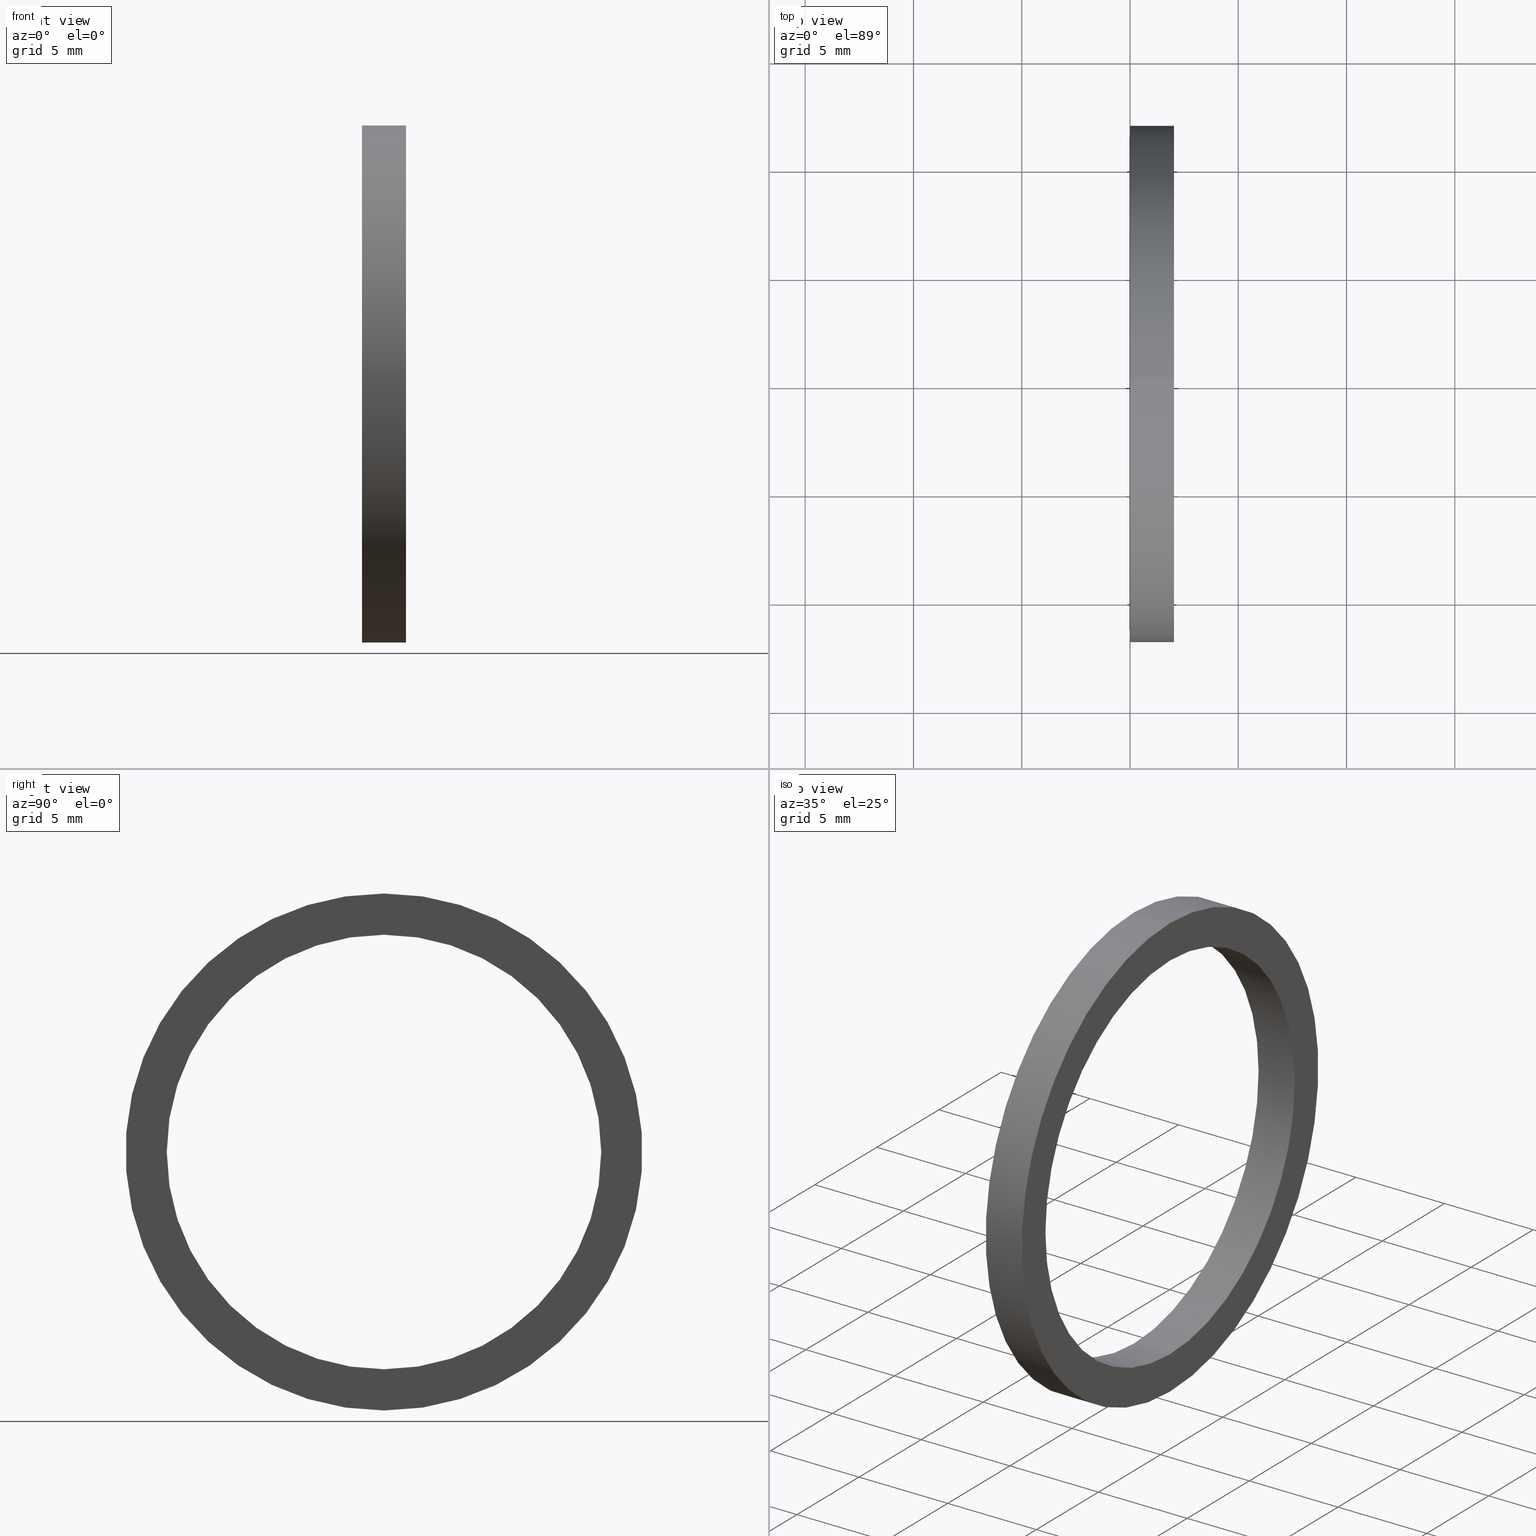
[diagram: canonical four-view strip — front | top / right | iso, engineering-drawing reading convention]
A machine part, canonical four-view strip (front | top / right | iso — engineering-drawing reading convention). The complete STEP part file that produces these views, byte-faithful:
ISO-10303-21;
HEADER;
FILE_DESCRIPTION (( 'STEP AP203' ),
    '1' );
FILE_NAME ('SM-20-VT.STEP',
    '2008-06-25T04:49:33',
    ( 'BSI05' ),
    ( 'BAYSTATE' ),
    'SwSTEP 2.0',
    'SolidWorks 2007',
    '' );
FILE_SCHEMA (( 'CONFIG_CONTROL_DESIGN' ));
ENDSEC;

DATA;
#1 = ORIENTED_EDGE ( 'NONE', *, *, #2, .T. ) ;
#2 = EDGE_CURVE ( 'NONE', #3, #11, #25, .T. ) ;
#3 = VERTEX_POINT ( 'NONE', #20 ) ;
#4 = EDGE_CURVE ( 'NONE', #252, #5, #19, .T. ) ;
#5 = VERTEX_POINT ( 'NONE', #49 ) ;
#6 = ORIENTED_EDGE ( 'NONE', *, *, #7, .T. ) ;
#7 = EDGE_CURVE ( 'NONE', #5, #8, #48, .T. ) ;
#8 = VERTEX_POINT ( 'NONE', #53 ) ;
#9 = ORIENTED_EDGE ( 'NONE', *, *, #10, .F. ) ;
#10 = EDGE_CURVE ( 'NONE', #44, #8, #56, .T. ) ;
#11 = VERTEX_POINT ( 'NONE', #63 ) ;
#12 = VERTEX_POINT ( 'NONE', #66 ) ;
#13 = EDGE_CURVE ( 'NONE', #8, #5, #64, .T. ) ;
#14 = ORIENTED_EDGE ( 'NONE', *, *, #239, .T. ) ;
#15 = ADVANCED_FACE ( 'NONE', ( #89 ), #90, .T. ) ;
#16 = ORIENTED_EDGE ( 'NONE', *, *, #234, .F. ) ;
#17 = ORIENTED_EDGE ( 'NONE', *, *, #29, .T. ) ;
#18 = ORIENTED_EDGE ( 'NONE', *, *, #7, .F. ) ;
#19 = LINE ( 'NONE', #47, #55 ) ;
#20 = CARTESIAN_POINT ( 'NONE',  ( 0.07999999999999996000, 0.0000000000000000000, 0.4699999999999999700 ) ) ;
#21 = DIRECTION ( 'NONE',  ( 0.0000000000000000000, 0.0000000000000000000, 1.000000000000000000 ) ) ;
#22 = DIRECTION ( 'NONE',  ( -1.000000000000000000, 0.0000000000000000000, 0.0000000000000000000 ) ) ;
#23 = CARTESIAN_POINT ( 'NONE',  ( 0.07999999999999996000, 0.0000000000000000000, 0.0000000000000000000 ) ) ;
#24 = AXIS2_PLACEMENT_3D ( 'NONE', #23, #22, #21 ) ;
#25 = CIRCLE ( 'NONE', #24, 0.4699999999999999700 ) ;
#26 = ADVANCED_FACE ( 'NONE', ( #94 ), #93, .T. ) ;
#27 = EDGE_LOOP ( 'NONE', ( #1, #233, #235, #238 ) ) ;
#28 = EDGE_LOOP ( 'NONE', ( #16, #17, #14, #229 ) ) ;
#29 = EDGE_CURVE ( 'NONE', #11, #3, #76, .T. ) ;
#30 = PERSON_AND_ORGANIZATION_ROLE ( 'creator' ) ;
#31 = PERSON_AND_ORGANIZATION ( #174, #173 ) ;
#32 = EDGE_CURVE ( 'NONE', #44, #252, #77, .T. ) ;
#33 = ORIENTED_EDGE ( 'NONE', *, *, #251, .T. ) ;
#34 = EDGE_LOOP ( 'NONE', ( #35, #36 ) ) ;
#35 = ORIENTED_EDGE ( 'NONE', *, *, #2, .F. ) ;
#36 = ORIENTED_EDGE ( 'NONE', *, *, #29, .F. ) ;
#37 = ADVANCED_FACE ( 'NONE', ( #83 ), #82, .F. ) ;
#38 = EDGE_LOOP ( 'NONE', ( #39, #40, #41, #42 ) ) ;
#39 = ORIENTED_EDGE ( 'NONE', *, *, #4, .F. ) ;
#40 = ORIENTED_EDGE ( 'NONE', *, *, #32, .F. ) ;
#41 = ORIENTED_EDGE ( 'NONE', *, *, #10, .T. ) ;
#42 = ORIENTED_EDGE ( 'NONE', *, *, #13, .T. ) ;
#43 = CLOSED_SHELL ( 'NONE', ( #248, #26, #240, #15, #230, #37 ) ) ;
#44 = VERTEX_POINT ( 'NONE', #101 ) ;
#45 = ORIENTED_EDGE ( 'NONE', *, *, #4, .T. ) ;
#46 = DIRECTION ( 'NONE',  ( -1.000000000000000000, 0.0000000000000000000, 0.0000000000000000000 ) ) ;
#47 = CARTESIAN_POINT ( 'NONE',  ( -1.721125226614714300, 4.837354856632045600E-017, -0.3950000000000000200 ) ) ;
#48 = CIRCLE ( 'NONE', #52, 0.3950000000000000200 ) ;
#49 = CARTESIAN_POINT ( 'NONE',  ( 0.0000000000000000000, 4.837354856632045600E-017, -0.3950000000000000200 ) ) ;
#50 = DIRECTION ( 'NONE',  ( -1.000000000000000000, 0.0000000000000000000, 0.0000000000000000000 ) ) ;
#51 = CARTESIAN_POINT ( 'NONE',  ( 0.0000000000000000000, 0.0000000000000000000, 0.0000000000000000000 ) ) ;
#52 = AXIS2_PLACEMENT_3D ( 'NONE', #51, #50, #54 ) ;
#53 = CARTESIAN_POINT ( 'NONE',  ( 0.0000000000000000000, 0.0000000000000000000, 0.3950000000000000200 ) ) ;
#54 = DIRECTION ( 'NONE',  ( 0.0000000000000000000, 0.0000000000000000000, 1.000000000000000000 ) ) ;
#55 = VECTOR ( 'NONE', #46, 39.37007874015748100 ) ;
#56 = LINE ( 'NONE', #62, #61 ) ;
#57 = AXIS2_PLACEMENT_3D ( 'NONE', #59, #58, #70 ) ;
#58 = DIRECTION ( 'NONE',  ( -1.000000000000000000, 0.0000000000000000000, 0.0000000000000000000 ) ) ;
#59 = CARTESIAN_POINT ( 'NONE',  ( 0.0000000000000000000, 0.0000000000000000000, 0.0000000000000000000 ) ) ;
#60 = DIRECTION ( 'NONE',  ( -1.000000000000000000, 0.0000000000000000000, 0.0000000000000000000 ) ) ;
#61 = VECTOR ( 'NONE', #60, 39.37007874015748100 ) ;
#62 = CARTESIAN_POINT ( 'NONE',  ( -1.721125226614714300, 0.0000000000000000000, 0.3950000000000000200 ) ) ;
#63 = CARTESIAN_POINT ( 'NONE',  ( 0.07999999999999996000, 5.755839955992559700E-017, -0.4699999999999999700 ) ) ;
#64 = CIRCLE ( 'NONE', #57, 0.3950000000000000200 ) ;
#65 = AXIS2_PLACEMENT_3D ( 'NONE', #69, #67, #71 ) ;
#66 = CARTESIAN_POINT ( 'NONE',  ( 0.0000000000000000000, 5.755839955992559700E-017, -0.4699999999999999700 ) ) ;
#67 = DIRECTION ( 'NONE',  ( -1.000000000000000000, 0.0000000000000000000, 0.0000000000000000000 ) ) ;
#68 = CC_DESIGN_PERSON_AND_ORGANIZATION_ASSIGNMENT ( #31, #30, ( #166 ) ) ;
#69 = CARTESIAN_POINT ( 'NONE',  ( -1.721125226614714300, 0.0000000000000000000, 0.0000000000000000000 ) ) ;
#70 = DIRECTION ( 'NONE',  ( 0.0000000000000000000, 0.0000000000000000000, 1.000000000000000000 ) ) ;
#71 = DIRECTION ( 'NONE',  ( 0.0000000000000000000, 0.0000000000000000000, 1.000000000000000000 ) ) ;
#72 = DIRECTION ( 'NONE',  ( -1.000000000000000000, 0.0000000000000000000, 0.0000000000000000000 ) ) ;
#73 = DIRECTION ( 'NONE',  ( 0.0000000000000000000, 0.0000000000000000000, 1.000000000000000000 ) ) ;
#74 = DIRECTION ( 'NONE',  ( -1.000000000000000000, 0.0000000000000000000, 0.0000000000000000000 ) ) ;
#75 = AXIS2_PLACEMENT_3D ( 'NONE', #92, #74, #73 ) ;
#76 = CIRCLE ( 'NONE', #75, 0.4699999999999999700 ) ;
#77 = CIRCLE ( 'NONE', #87, 0.3950000000000000200 ) ;
#78 = DIRECTION ( 'NONE',  ( 0.0000000000000000000, 0.0000000000000000000, 1.000000000000000000 ) ) ;
#79 = AXIS2_PLACEMENT_3D ( 'NONE', #91, #72, #78 ) ;
#80 = LOCAL_TIME ( 10, 19, 33.00000000000000000, #81 ) ;
#81 = COORDINATED_UNIVERSAL_TIME_OFFSET ( 5, 30, .AHEAD. ) ;
#82 = CYLINDRICAL_SURFACE ( 'NONE', #65, 0.3950000000000000200 ) ;
#83 = FACE_OUTER_BOUND ( 'NONE', #38, .T. ) ;
#84 = DIRECTION ( 'NONE',  ( 0.0000000000000000000, 0.0000000000000000000, 1.000000000000000000 ) ) ;
#85 = DIRECTION ( 'NONE',  ( -1.000000000000000000, 0.0000000000000000000, 0.0000000000000000000 ) ) ;
#86 = CARTESIAN_POINT ( 'NONE',  ( 0.07999999999999996000, 0.0000000000000000000, 0.0000000000000000000 ) ) ;
#87 = AXIS2_PLACEMENT_3D ( 'NONE', #86, #85, #84 ) ;
#88 = AXIS2_PLACEMENT_3D ( 'NONE', #97, #96, #95 ) ;
#89 = FACE_OUTER_BOUND ( 'NONE', #28, .T. ) ;
#90 = CYLINDRICAL_SURFACE ( 'NONE', #88, 0.4699999999999999700 ) ;
#91 = CARTESIAN_POINT ( 'NONE',  ( -1.721125226614714300, 0.0000000000000000000, 0.0000000000000000000 ) ) ;
#92 = CARTESIAN_POINT ( 'NONE',  ( 0.07999999999999996000, 0.0000000000000000000, 0.0000000000000000000 ) ) ;
#93 = CYLINDRICAL_SURFACE ( 'NONE', #79, 0.4699999999999999700 ) ;
#94 = FACE_OUTER_BOUND ( 'NONE', #27, .T. ) ;
#95 = DIRECTION ( 'NONE',  ( 0.0000000000000000000, 0.0000000000000000000, 1.000000000000000000 ) ) ;
#96 = DIRECTION ( 'NONE',  ( -1.000000000000000000, 0.0000000000000000000, 0.0000000000000000000 ) ) ;
#97 = CARTESIAN_POINT ( 'NONE',  ( -1.721125226614714300, 0.0000000000000000000, 0.0000000000000000000 ) ) ;
#98 = FACE_OUTER_BOUND ( 'NONE', #34, .T. ) ;
#99 = CARTESIAN_POINT ( 'NONE',  ( 0.08000000000000001600, -0.3950000000000000200, 0.0000000000000000000 ) ) ;
#100 = FACE_BOUND ( 'NONE', #231, .T. ) ;
#101 = CARTESIAN_POINT ( 'NONE',  ( 0.07999999999999996000, 0.0000000000000000000, 0.3950000000000000200 ) ) ;
#102 = CALENDAR_DATE ( 2008, 25, 6 ) ;
#103 = PLANE ( 'NONE',  #108 ) ;
#104 = DIRECTION ( 'NONE',  ( -1.000000000000000000, 0.0000000000000000000, 0.0000000000000000000 ) ) ;
#105 = VECTOR ( 'NONE', #104, 39.37007874015748100 ) ;
#106 = CARTESIAN_POINT ( 'NONE',  ( -1.721125226614714300, 5.755839955992559700E-017, -0.4699999999999999700 ) ) ;
#107 = LINE ( 'NONE', #106, #105 ) ;
#108 = AXIS2_PLACEMENT_3D ( 'NONE', #99, #110, #109 ) ;
#109 = DIRECTION ( 'NONE',  ( 0.0000000000000000000, 0.0000000000000000000, -1.000000000000000000 ) ) ;
#110 = DIRECTION ( 'NONE',  ( 1.000000000000000000, 0.0000000000000000000, 0.0000000000000000000 ) ) ;
#111 = CIRCLE ( 'NONE', #139, 0.4699999999999999700 ) ;
#112 = CARTESIAN_POINT ( 'NONE',  ( 0.0000000000000000000, 0.0000000000000000000, 0.0000000000000000000 ) ) ;
#113 = DIRECTION ( 'NONE',  ( -1.000000000000000000, 0.0000000000000000000, 0.0000000000000000000 ) ) ;
#114 = DIRECTION ( 'NONE',  ( 0.0000000000000000000, 0.0000000000000000000, 1.000000000000000000 ) ) ;
#115 = DIRECTION ( 'NONE',  ( -1.000000000000000000, 0.0000000000000000000, 0.0000000000000000000 ) ) ;
#116 = CARTESIAN_POINT ( 'NONE',  ( 1.438912465741293300E-017, -0.3950000000000000200, 0.0000000000000000000 ) ) ;
#117 = AXIS2_PLACEMENT_3D ( 'NONE', #116, #115, #114 ) ;
#118 = CARTESIAN_POINT ( 'NONE',  ( 0.0000000000000000000, 0.0000000000000000000, 0.0000000000000000000 ) ) ;
#119 = CARTESIAN_POINT ( 'NONE',  ( 0.0000000000000000000, 0.0000000000000000000, 0.4699999999999999700 ) ) ;
#120 = DIRECTION ( 'NONE',  ( 0.0000000000000000000, 0.0000000000000000000, 1.000000000000000000 ) ) ;
#121 = FACE_BOUND ( 'NONE', #245, .T. ) ;
#122 = FACE_OUTER_BOUND ( 'NONE', #241, .T. ) ;
#123 = DIRECTION ( 'NONE',  ( -1.000000000000000000, 0.0000000000000000000, 0.0000000000000000000 ) ) ;
#124 = VECTOR ( 'NONE', #123, 39.37007874015748100 ) ;
#125 =( GEOMETRIC_REPRESENTATION_CONTEXT ( 3 ) GLOBAL_UNCERTAINTY_ASSIGNED_CONTEXT ( ( #126 ) ) GLOBAL_UNIT_ASSIGNED_CONTEXT ( ( #129, #128, #127 ) ) REPRESENTATION_CONTEXT ( 'NONE', 'WORKASPACE' ) );
#126 = UNCERTAINTY_MEASURE_WITH_UNIT (LENGTH_MEASURE( 1.000000000000000100E-005 ), #129, 'distance_accuracy_value', 'NONE');
#127 =( NAMED_UNIT ( * ) SI_UNIT ( $, .STERADIAN. ) SOLID_ANGLE_UNIT ( ) );
#128 =( NAMED_UNIT ( * ) PLANE_ANGLE_UNIT ( ) SI_UNIT ( $, .RADIAN. ) );
#129 =( CONVERSION_BASED_UNIT ( 'INCH', #130 ) LENGTH_UNIT ( ) NAMED_UNIT ( #131 ) );
#130 = LENGTH_MEASURE_WITH_UNIT ( LENGTH_MEASURE( 0.02539999999999999900 ), #132 );
#131 = DIMENSIONAL_EXPONENTS ( 1.000000000000000000, 0.0000000000000000000, 0.0000000000000000000, 0.0000000000000000000, 0.0000000000000000000, 0.0000000000000000000, 0.0000000000000000000 ) ;
#132 =( LENGTH_UNIT ( ) NAMED_UNIT ( * ) SI_UNIT ( $, .METRE. ) );
#133 = DIRECTION ( 'NONE',  ( 0.0000000000000000000, 0.0000000000000000000, 1.000000000000000000 ) ) ;
#134 = CARTESIAN_POINT ( 'NONE',  ( 0.07999999999999996000, 4.837354856632045600E-017, -0.3950000000000000200 ) ) ;
#135 = DIRECTION ( 'NONE',  ( 0.0000000000000000000, 0.0000000000000000000, 1.000000000000000000 ) ) ;
#136 = DIRECTION ( 'NONE',  ( -1.000000000000000000, 0.0000000000000000000, 0.0000000000000000000 ) ) ;
#137 = CARTESIAN_POINT ( 'NONE',  ( 0.07999999999999996000, 0.0000000000000000000, 0.0000000000000000000 ) ) ;
#138 = AXIS2_PLACEMENT_3D ( 'NONE', #137, #136, #135 ) ;
#139 = AXIS2_PLACEMENT_3D ( 'NONE', #112, #113, #120 ) ;
#140 = DIRECTION ( 'NONE',  ( 0.0000000000000000000, 0.0000000000000000000, 1.000000000000000000 ) ) ;
#141 = DIRECTION ( 'NONE',  ( -1.000000000000000000, 0.0000000000000000000, 0.0000000000000000000 ) ) ;
#142 = AXIS2_PLACEMENT_3D ( 'NONE', #118, #141, #140 ) ;
#143 = CIRCLE ( 'NONE', #142, 0.4699999999999999700 ) ;
#144 = FACE_OUTER_BOUND ( 'NONE', #249, .T. ) ;
#145 = CIRCLE ( 'NONE', #138, 0.3950000000000000200 ) ;
#146 = DIRECTION ( 'NONE',  ( 0.0000000000000000000, 0.0000000000000000000, 1.000000000000000000 ) ) ;
#147 = DIRECTION ( 'NONE',  ( -1.000000000000000000, 0.0000000000000000000, 0.0000000000000000000 ) ) ;
#148 = CARTESIAN_POINT ( 'NONE',  ( -1.721125226614714300, 0.0000000000000000000, 0.0000000000000000000 ) ) ;
#149 = AXIS2_PLACEMENT_3D ( 'NONE', #148, #147, #146 ) ;
#150 = CYLINDRICAL_SURFACE ( 'NONE', #149, 0.3950000000000000200 ) ;
#151 = DIRECTION ( 'NONE',  ( 1.000000000000000000, 0.0000000000000000000, 0.0000000000000000000 ) ) ;
#152 = CARTESIAN_POINT ( 'NONE',  ( 0.0000000000000000000, 0.0000000000000000000, 0.0000000000000000000 ) ) ;
#153 = AXIS2_PLACEMENT_3D ( 'NONE', #152, #133, #151 ) ;
#154 = ADVANCED_BREP_SHAPE_REPRESENTATION ( 'SM-20-VT', ( #247, #153 ), #125 ) ;
#155 = CC_DESIGN_APPROVAL ( #163, ( #166 ) ) ;
#156 = APPROVAL_DATE_TIME ( #157, #163 ) ;
#157 = DATE_AND_TIME ( #158, #159 ) ;
#158 = CALENDAR_DATE ( 2008, 25, 6 ) ;
#159 = LOCAL_TIME ( 10, 19, 33.00000000000000000, #160 ) ;
#160 = COORDINATED_UNIVERSAL_TIME_OFFSET ( 5, 30, .AHEAD. ) ;
#161 = APPROVAL_PERSON_ORGANIZATION ( #165, #163, #162 ) ;
#162 = APPROVAL_ROLE ( '' ) ;
#163 = APPROVAL ( #164, 'UNSPECIFIED' ) ;
#164 = APPROVAL_STATUS ( 'not_yet_approved' ) ;
#165 = PERSON_AND_ORGANIZATION ( #174, #173 ) ;
#166 = PRODUCT_DEFINITION ( 'UNKNOWN', '', #187, #167 ) ;
#167 = DESIGN_CONTEXT ( 'detailed design', #169, 'design' ) ;
#168 = APPLICATION_PROTOCOL_DEFINITION ( 'international standard', 'config_control_design', 1994, #169 ) ;
#169 = APPLICATION_CONTEXT ( 'configuration controlled 3d designs of mechanical parts and assemblies' ) ;
#170 = CC_DESIGN_PERSON_AND_ORGANIZATION_ASSIGNMENT ( #172, #171, ( #175 ) ) ;
#171 = PERSON_AND_ORGANIZATION_ROLE ( 'design_owner' ) ;
#172 = PERSON_AND_ORGANIZATION ( #174, #173 ) ;
#173 = ORGANIZATION ( 'UNSPECIFIED', 'UNSPECIFIED', '' ) ;
#174 = PERSON ( 'UNSPECIFIED', 'UNSPECIFIED', 'UNSPECIFIED', ('UNSPECIFIED'), ('UNSPECIFIED'), ('UNSPECIFIED') ) ;
#175 = PRODUCT ( 'SM-20-VT', 'SM-20-VT', '', ( #176 ) ) ;
#176 = MECHANICAL_CONTEXT ( 'NONE', #178, 'mechanical' ) ;
#177 = APPLICATION_PROTOCOL_DEFINITION ( 'international standard', 'config_control_design', 1994, #178 ) ;
#178 = APPLICATION_CONTEXT ( 'configuration controlled 3d designs of mechanical parts and assemblies' ) ;
#179 = CARTESIAN_POINT ( 'NONE',  ( -1.721125226614714300, 0.0000000000000000000, 0.4699999999999999700 ) ) ;
#180 = LINE ( 'NONE', #179, #124 ) ;
#181 = PLANE ( 'NONE',  #117 ) ;
#182 = PERSON_AND_ORGANIZATION_ROLE ( 'creator' ) ;
#183 = PERSON_AND_ORGANIZATION ( #174, #173 ) ;
#184 = DATE_AND_TIME ( #197, #198 ) ;
#185 = COORDINATED_UNIVERSAL_TIME_OFFSET ( 5, 30, .AHEAD. ) ;
#186 = CC_DESIGN_PERSON_AND_ORGANIZATION_ASSIGNMENT ( #183, #182, ( #187 ) ) ;
#187 = PRODUCT_DEFINITION_FORMATION_WITH_SPECIFIED_SOURCE ( 'ANY', '', #175, .NOT_KNOWN. ) ;
#188 = SECURITY_CLASSIFICATION_LEVEL ( 'unclassified' ) ;
#189 = CC_DESIGN_PERSON_AND_ORGANIZATION_ASSIGNMENT ( #191, #190, ( #187 ) ) ;
#190 = PERSON_AND_ORGANIZATION_ROLE ( 'design_supplier' ) ;
#191 = PERSON_AND_ORGANIZATION ( #174, #173 ) ;
#192 = APPROVAL_STATUS ( 'not_yet_approved' ) ;
#193 = APPROVAL_PERSON_ORGANIZATION ( #202, #203, #194 ) ;
#194 = APPROVAL_ROLE ( '' ) ;
#195 = DATE_TIME_ROLE ( 'creation_date' ) ;
#196 = DATE_AND_TIME ( #102, #80 ) ;
#197 = CALENDAR_DATE ( 2008, 25, 6 ) ;
#198 = LOCAL_TIME ( 10, 19, 33.00000000000000000, #185 ) ;
#199 = CC_DESIGN_APPROVAL ( #203, ( #187 ) ) ;
#200 = APPROVAL_DATE_TIME ( #184, #203 ) ;
#201 = CC_DESIGN_DATE_AND_TIME_ASSIGNMENT ( #196, #195, ( #166 ) ) ;
#202 = PERSON_AND_ORGANIZATION ( #174, #173 ) ;
#203 = APPROVAL ( #192, 'UNSPECIFIED' ) ;
#204 = LOCAL_TIME ( 10, 19, 33.00000000000000000, #205 ) ;
#205 = COORDINATED_UNIVERSAL_TIME_OFFSET ( 5, 30, .AHEAD. ) ;
#206 = CC_DESIGN_PERSON_AND_ORGANIZATION_ASSIGNMENT ( #208, #207, ( #209 ) ) ;
#207 = PERSON_AND_ORGANIZATION_ROLE ( 'classification_officer' ) ;
#208 = PERSON_AND_ORGANIZATION ( #174, #173 ) ;
#209 = SECURITY_CLASSIFICATION ( '', '', #188 ) ;
#210 = APPROVAL_STATUS ( 'not_yet_approved' ) ;
#211 = SHAPE_DEFINITION_REPRESENTATION ( #212, #154 ) ;
#212 = PRODUCT_DEFINITION_SHAPE ( 'NONE', 'NONE',  #166 ) ;
#213 = DATE_AND_TIME ( #225, #226 ) ;
#214 = COORDINATED_UNIVERSAL_TIME_OFFSET ( 5, 30, .AHEAD. ) ;
#215 = APPROVAL_PERSON_ORGANIZATION ( #220, #216, #227 ) ;
#216 = APPROVAL ( #210, 'UNSPECIFIED' ) ;
#217 = DATE_AND_TIME ( #218, #204 ) ;
#218 = CALENDAR_DATE ( 2008, 25, 6 ) ;
#219 = CC_DESIGN_DATE_AND_TIME_ASSIGNMENT ( #217, #228, ( #209 ) ) ;
#220 = PERSON_AND_ORGANIZATION ( #174, #173 ) ;
#221 = PRODUCT_RELATED_PRODUCT_CATEGORY ( 'detail', '', ( #175 ) ) ;
#222 = CC_DESIGN_SECURITY_CLASSIFICATION ( #209, ( #187 ) ) ;
#223 = CC_DESIGN_APPROVAL ( #216, ( #209 ) ) ;
#224 = APPROVAL_DATE_TIME ( #213, #216 ) ;
#225 = CALENDAR_DATE ( 2008, 25, 6 ) ;
#226 = LOCAL_TIME ( 10, 19, 33.00000000000000000, #214 ) ;
#227 = APPROVAL_ROLE ( '' ) ;
#228 = DATE_TIME_ROLE ( 'classification_date' ) ;
#229 = ORIENTED_EDGE ( 'NONE', *, *, #244, .F. ) ;
#230 = ADVANCED_FACE ( 'NONE', ( #100, #98 ), #103, .T. ) ;
#231 = EDGE_LOOP ( 'NONE', ( #232, #33 ) ) ;
#232 = ORIENTED_EDGE ( 'NONE', *, *, #32, .T. ) ;
#233 = ORIENTED_EDGE ( 'NONE', *, *, #234, .T. ) ;
#234 = EDGE_CURVE ( 'NONE', #11, #12, #107, .T. ) ;
#235 = ORIENTED_EDGE ( 'NONE', *, *, #236, .F. ) ;
#236 = EDGE_CURVE ( 'NONE', #237, #12, #111, .T. ) ;
#237 = VERTEX_POINT ( 'NONE', #119 ) ;
#238 = ORIENTED_EDGE ( 'NONE', *, *, #239, .F. ) ;
#239 = EDGE_CURVE ( 'NONE', #3, #237, #180, .T. ) ;
#240 = ADVANCED_FACE ( 'NONE', ( #122, #121 ), #181, .T. ) ;
#241 = EDGE_LOOP ( 'NONE', ( #242, #243 ) ) ;
#242 = ORIENTED_EDGE ( 'NONE', *, *, #236, .T. ) ;
#243 = ORIENTED_EDGE ( 'NONE', *, *, #244, .T. ) ;
#244 = EDGE_CURVE ( 'NONE', #12, #237, #143, .T. ) ;
#245 = EDGE_LOOP ( 'NONE', ( #246, #18 ) ) ;
#246 = ORIENTED_EDGE ( 'NONE', *, *, #13, .F. ) ;
#247 = MANIFOLD_SOLID_BREP ( 'NONE', #43 ) ;
#248 = ADVANCED_FACE ( 'NONE', ( #144 ), #150, .F. ) ;
#249 = EDGE_LOOP ( 'NONE', ( #250, #45, #6, #9 ) ) ;
#250 = ORIENTED_EDGE ( 'NONE', *, *, #251, .F. ) ;
#251 = EDGE_CURVE ( 'NONE', #252, #44, #145, .T. ) ;
#252 = VERTEX_POINT ( 'NONE', #134 ) ;
ENDSEC;
END-ISO-10303-21;
